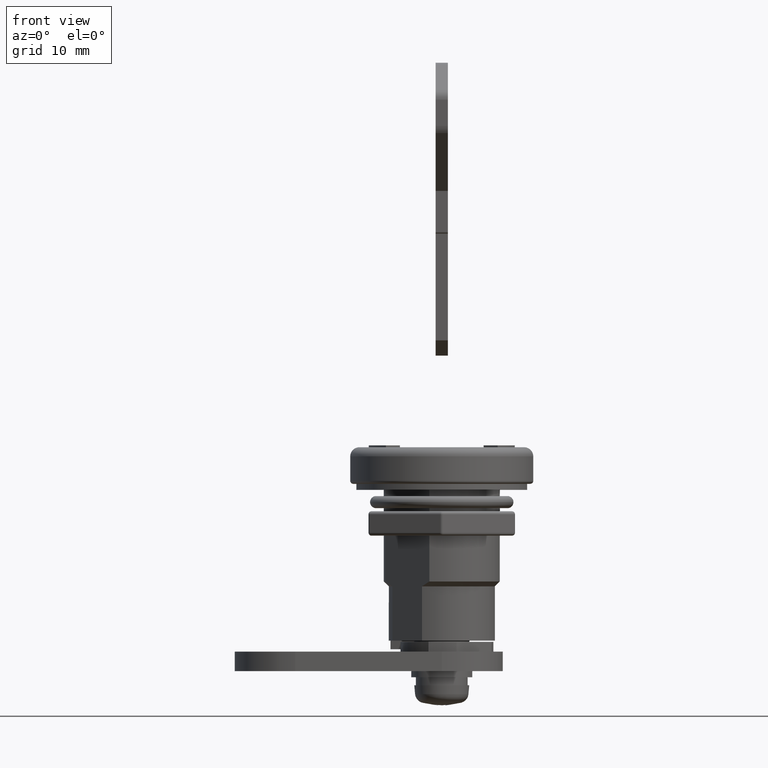
[diagram: clean part render]
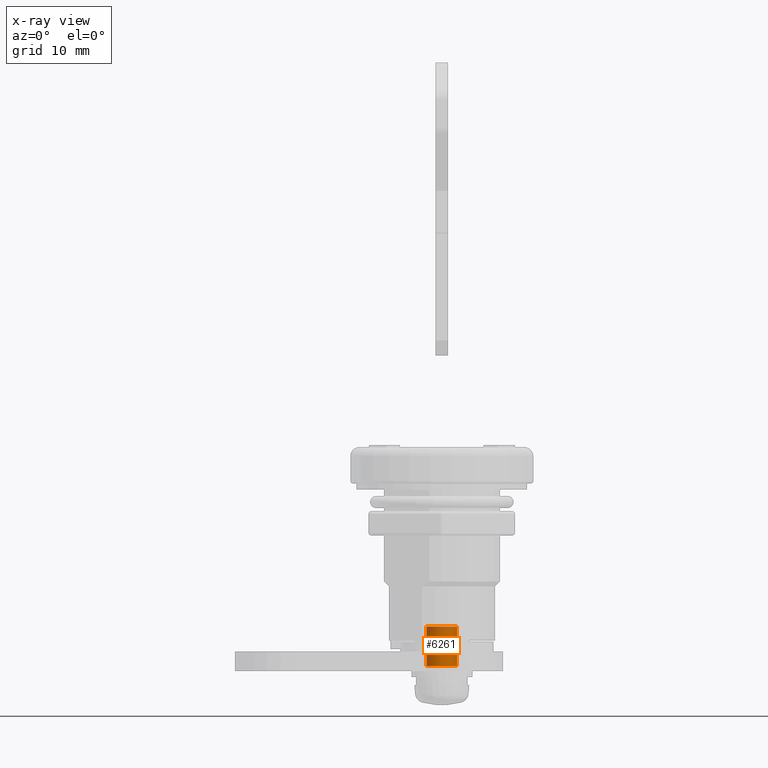
[diagram: x-ray — body ghosted, one internal face saturated and labeled with its STEP entity id]
A machine part, front view, then the same camera in x-ray: the body is ghosted and one INTERNAL B-rep face — a face not visible from any outside direction — is saturated and labeled: STEP entity #6261.
In plain terms, the highlighted cylindrical surface (edge-blend (fillet) strip) has radius 2.5 mm, axis along (-0, -0, -1).
Its self-contained STEP definition (entity closure, byte-faithful):
#43 = DIRECTION ( 'NONE',  ( -1.000000000000000000, 0.0000000000000000000, 0.0000000000000000000 ) ) ;
#267 = VERTEX_POINT ( 'NONE', #4035 ) ;
#374 = DIRECTION ( 'NONE',  ( -1.000000000000000000, 0.0000000000000000000, 0.0000000000000000000 ) ) ;
#665 = LINE ( 'NONE', #3681, #871 ) ;
#825 = CIRCLE ( 'NONE', #4687, 2.500000000000000000 ) ;
#871 = VECTOR ( 'NONE', #5049, 1000.000000000000000 ) ;
#1146 = AXIS2_PLACEMENT_3D ( 'NONE', #2597, #3913, #43 ) ;
#1415 = EDGE_CURVE ( 'NONE', #267, #1559, #665, .T. ) ;
#1559 = VERTEX_POINT ( 'NONE', #7356 ) ;
#2125 = DIRECTION ( 'NONE',  ( -0.0000000000000000000, -0.0000000000000000000, -1.000000000000000000 ) ) ;
#2154 = DIRECTION ( 'NONE',  ( 0.0000000000000000000, 0.0000000000000000000, -1.000000000000000000 ) ) ;
#2397 = ORIENTED_EDGE ( 'NONE', *, *, #4824, .T. ) ;
#2445 = ORIENTED_EDGE ( 'NONE', *, *, #3669, .F. ) ;
#2515 = VECTOR ( 'NONE', #2125, 1000.000000000000000 ) ;
#2597 = CARTESIAN_POINT ( 'NONE',  ( 0.0000000000000000000, 0.0000000000000000000, -29.40000000000000200 ) ) ;
#2861 = ORIENTED_EDGE ( 'NONE', *, *, #1415, .T. ) ;
#3413 = VERTEX_POINT ( 'NONE', #7465 ) ;
#3435 = AXIS2_PLACEMENT_3D ( 'NONE', #8028, #4237, #374 ) ;
#3669 = EDGE_CURVE ( 'NONE', #3413, #6142, #4255, .T. ) ;
#3676 = EDGE_CURVE ( 'NONE', #267, #3413, #825, .T. ) ;
#3681 = CARTESIAN_POINT ( 'NONE',  ( 2.500000000000000000, 3.061616997868382600E-016, -29.40000000000000200 ) ) ;
#3724 = CIRCLE ( 'NONE', #3435, 2.500000000000000000 ) ;
#3779 = ORIENTED_EDGE ( 'NONE', *, *, #3676, .F. ) ;
#3796 = CYLINDRICAL_SURFACE ( 'NONE', #1146, 2.500000000000000000 ) ;
#3913 = DIRECTION ( 'NONE',  ( -0.0000000000000000000, -0.0000000000000000000, -1.000000000000000000 ) ) ;
#4035 = CARTESIAN_POINT ( 'NONE',  ( 2.500000000000000000, 3.061616997868382600E-016, -29.40000000000000200 ) ) ;
#4237 = DIRECTION ( 'NONE',  ( 0.0000000000000000000, 0.0000000000000000000, -1.000000000000000000 ) ) ;
#4255 = LINE ( 'NONE', #6623, #2515 ) ;
#4687 = AXIS2_PLACEMENT_3D ( 'NONE', #6025, #2154, #6651 ) ;
#4824 = EDGE_CURVE ( 'NONE', #1559, #6142, #3724, .T. ) ;
#5049 = DIRECTION ( 'NONE',  ( -0.0000000000000000000, -0.0000000000000000000, -1.000000000000000000 ) ) ;
#6025 = CARTESIAN_POINT ( 'NONE',  ( 0.0000000000000000000, 0.0000000000000000000, -29.40000000000000200 ) ) ;
#6142 = VERTEX_POINT ( 'NONE', #8220 ) ;
#6261 = ADVANCED_FACE ( 'NONE', ( #7191 ), #3796, .F. ) ;
#6489 = EDGE_LOOP ( 'NONE', ( #3779, #2861, #2397, #2445 ) ) ;
#6623 = CARTESIAN_POINT ( 'NONE',  ( -2.500000000000000000, 0.0000000000000000000, -29.40000000000000200 ) ) ;
#6651 = DIRECTION ( 'NONE',  ( -1.000000000000000000, 0.0000000000000000000, 0.0000000000000000000 ) ) ;
#7191 = FACE_OUTER_BOUND ( 'NONE', #6489, .T. ) ;
#7356 = CARTESIAN_POINT ( 'NONE',  ( 2.500000000000000000, 3.061616997868382600E-016, -35.89999999999999900 ) ) ;
#7465 = CARTESIAN_POINT ( 'NONE',  ( -2.500000000000000000, 0.0000000000000000000, -29.40000000000000200 ) ) ;
#8028 = CARTESIAN_POINT ( 'NONE',  ( 0.0000000000000000000, 0.0000000000000000000, -35.89999999999999900 ) ) ;
#8220 = CARTESIAN_POINT ( 'NONE',  ( -2.500000000000000000, 0.0000000000000000000, -35.89999999999999900 ) ) ;